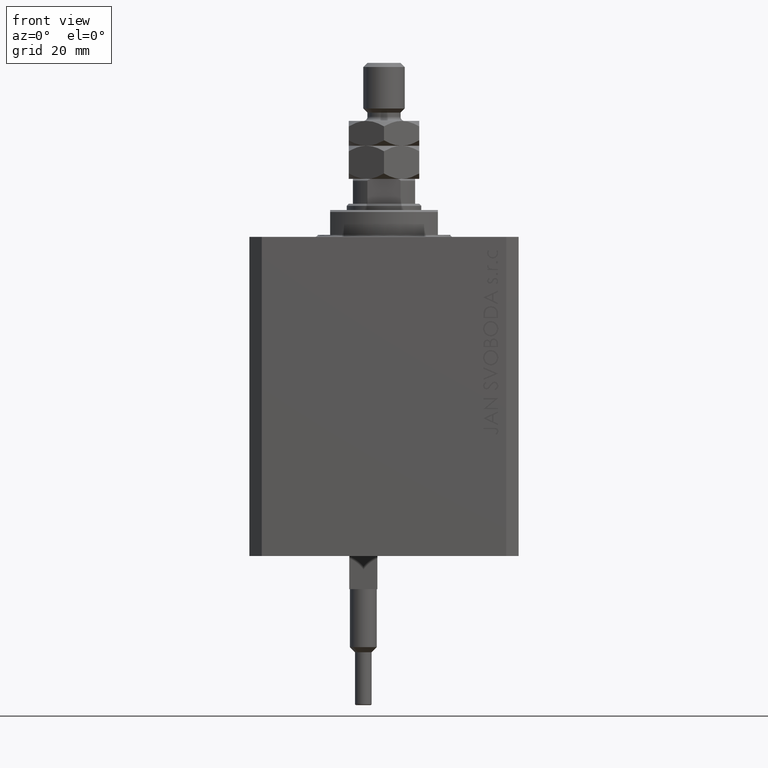
[diagram: clean part render]
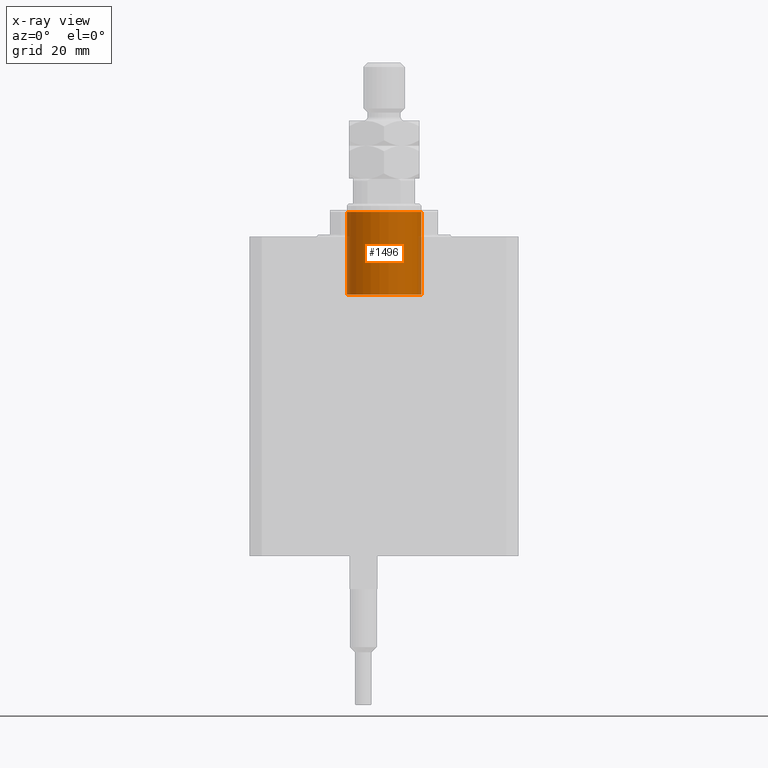
[diagram: x-ray — body ghosted, one internal face saturated and labeled with its STEP entity id]
A machine part, front view, then the same camera in x-ray: the body is ghosted and one INTERNAL B-rep face — a face not visible from any outside direction — is saturated and labeled: STEP entity #1496.
In plain terms, the highlighted cylindrical surface (partial cylindrical patch) has radius 9 mm, axis along (0, -0, 1).
Its self-contained STEP definition (entity closure, byte-faithful):
#151 = LINE ( 'NONE', #7943, #41873 ) ;
#1284 = EDGE_CURVE ( 'NONE', #32309, #39699, #48647, .T. ) ;
#1496 = ADVANCED_FACE ( 'NONE', ( #34636 ), #42948, .F. ) ;
#3984 = VERTEX_POINT ( 'NONE', #40738 ) ;
#4405 = CARTESIAN_POINT ( 'NONE',  ( 9.000000000000000000, 1.102182119232617714E-15, -5.999999999999987566 ) ) ;
#4714 = CARTESIAN_POINT ( 'NONE',  ( 0.000000000000000000, 0.000000000000000000, -5.999999999999987566 ) ) ;
#5293 = EDGE_LOOP ( 'NONE', ( #5408, #5349, #6757, #16059 ) ) ;
#5349 = ORIENTED_EDGE ( 'NONE', *, *, #15648, .T. ) ;
#5408 = ORIENTED_EDGE ( 'NONE', *, *, #38110, .F. ) ;
#5931 = VERTEX_POINT ( 'NONE', #13291 ) ;
#6757 = ORIENTED_EDGE ( 'NONE', *, *, #1284, .T. ) ;
#7178 = CIRCLE ( 'NONE', #10409, 9.000000000000000000 ) ;
#7943 = CARTESIAN_POINT ( 'NONE',  ( -9.000000000000000000, 0.000000000000000000, 14.00000000000000178 ) ) ;
#8260 = DIRECTION ( 'NONE',  ( -1.000000000000000000, 0.000000000000000000, 0.000000000000000000 ) ) ;
#10409 = AXIS2_PLACEMENT_3D ( 'NONE', #42420, #38897, #15960 ) ;
#13291 = CARTESIAN_POINT ( 'NONE',  ( 9.000000000000000000, 1.102182119232617714E-15, 14.00000000000000178 ) ) ;
#15229 = DIRECTION ( 'NONE',  ( -1.000000000000000000, 0.000000000000000000, 0.000000000000000000 ) ) ;
#15499 = DIRECTION ( 'NONE',  ( -0.000000000000000000, -0.000000000000000000, -1.000000000000000000 ) ) ;
#15648 = EDGE_CURVE ( 'NONE', #5931, #32309, #49481, .T. ) ;
#15960 = DIRECTION ( 'NONE',  ( -1.000000000000000000, 0.000000000000000000, 0.000000000000000000 ) ) ;
#16059 = ORIENTED_EDGE ( 'NONE', *, *, #27690, .F. ) ;
#21270 = AXIS2_PLACEMENT_3D ( 'NONE', #23032, #23783, #15229 ) ;
#22774 = DIRECTION ( 'NONE',  ( -0.000000000000000000, -0.000000000000000000, -1.000000000000000000 ) ) ;
#23032 = CARTESIAN_POINT ( 'NONE',  ( 0.000000000000000000, 0.000000000000000000, 14.00000000000000178 ) ) ;
#23783 = DIRECTION ( 'NONE',  ( -0.000000000000000000, -0.000000000000000000, -1.000000000000000000 ) ) ;
#26077 = AXIS2_PLACEMENT_3D ( 'NONE', #4714, #39223, #8260 ) ;
#26425 = VECTOR ( 'NONE', #22774, 1000.000000000000000 ) ;
#27690 = EDGE_CURVE ( 'NONE', #3984, #39699, #151, .T. ) ;
#32309 = VERTEX_POINT ( 'NONE', #4405 ) ;
#32322 = CARTESIAN_POINT ( 'NONE',  ( -9.000000000000000000, 0.000000000000000000, -5.999999999999987566 ) ) ;
#34636 = FACE_OUTER_BOUND ( 'NONE', #5293, .T. ) ;
#38110 = EDGE_CURVE ( 'NONE', #5931, #3984, #7178, .T. ) ;
#38897 = DIRECTION ( 'NONE',  ( 0.000000000000000000, 0.000000000000000000, -1.000000000000000000 ) ) ;
#39223 = DIRECTION ( 'NONE',  ( 0.000000000000000000, 0.000000000000000000, -1.000000000000000000 ) ) ;
#39699 = VERTEX_POINT ( 'NONE', #32322 ) ;
#40738 = CARTESIAN_POINT ( 'NONE',  ( -9.000000000000000000, 0.000000000000000000, 14.00000000000000178 ) ) ;
#41873 = VECTOR ( 'NONE', #15499, 1000.000000000000000 ) ;
#42420 = CARTESIAN_POINT ( 'NONE',  ( 0.000000000000000000, 0.000000000000000000, 14.00000000000000178 ) ) ;
#42948 = CYLINDRICAL_SURFACE ( 'NONE', #21270, 9.000000000000000000 ) ;
#48647 = CIRCLE ( 'NONE', #26077, 9.000000000000000000 ) ;
#49248 = CARTESIAN_POINT ( 'NONE',  ( 9.000000000000000000, 1.102182119232617714E-15, 14.00000000000000178 ) ) ;
#49481 = LINE ( 'NONE', #49248, #26425 ) ;